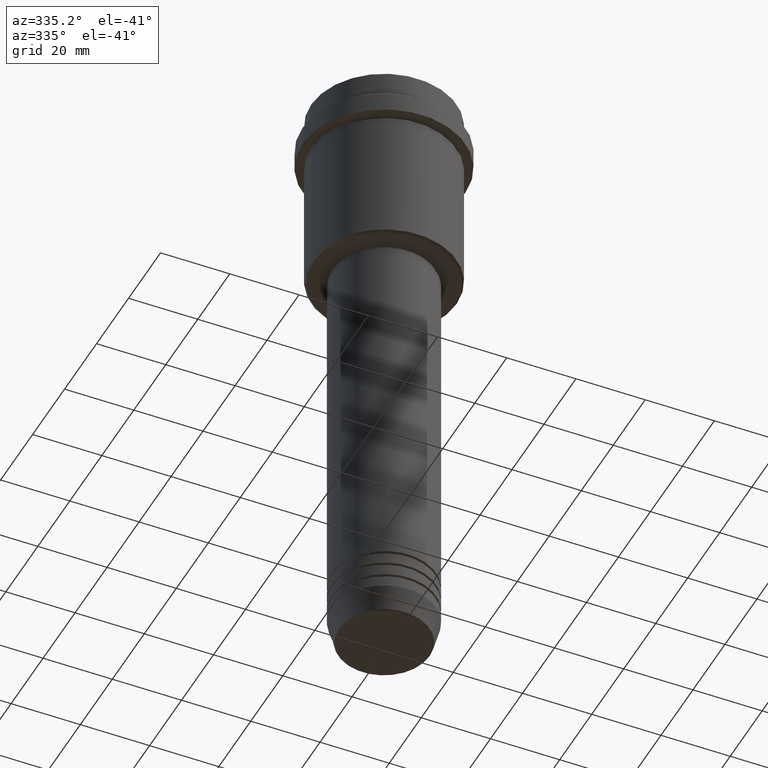
[diagram: clean part render]
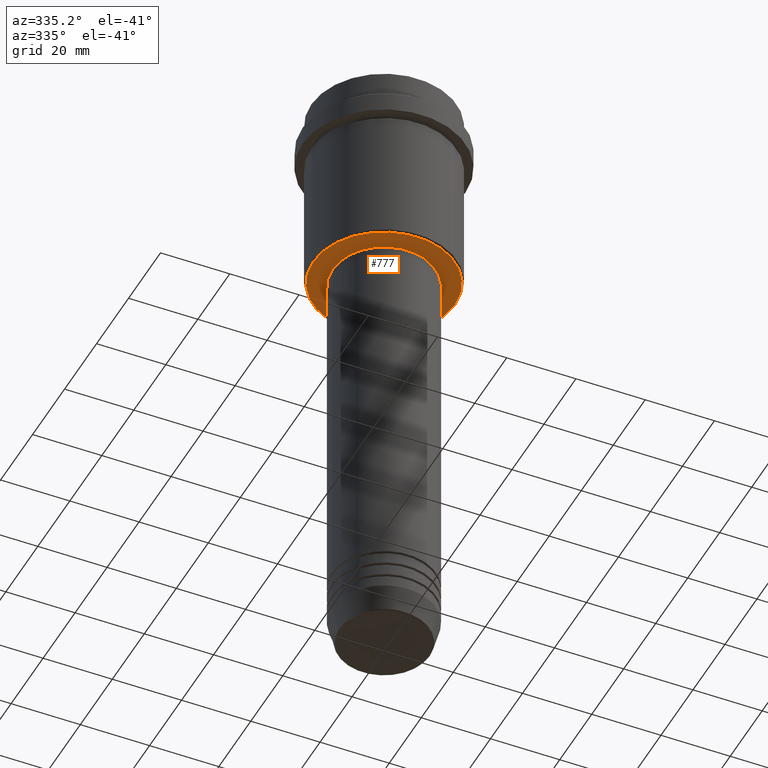
[diagram: same view with one face highlighted and labeled with its STEP entity id]
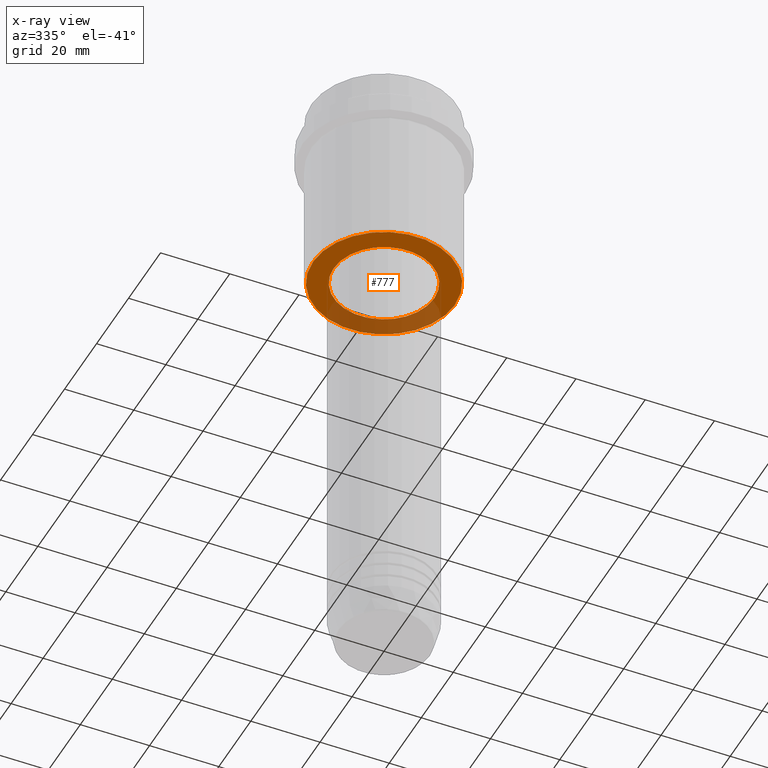
[diagram: x-ray of the same camera — body ghosted, the highlighted face saturated]
A machine part, auxiliary view. The second image highlights one B-rep face of the part: STEP entity #777.
The next image is the same camera in x-ray: the body ghosted, the highlighted face saturated — about 30% of this face is hidden behind the body in this view.
In plain terms, the highlighted planar face has unit normal (0, 0, -1).
Its self-contained STEP definition (entity closure, byte-faithful):
#12 = DIRECTION ( 'NONE',  ( 0.000000000000000000, 0.000000000000000000, -1.000000000000000000 ) ) ;
#60 = AXIS2_PLACEMENT_3D ( 'NONE', #85, #1067, #298 ) ;
#65 = PLANE ( 'NONE',  #1171 ) ;
#85 = CARTESIAN_POINT ( 'NONE',  ( 0.000000000000000000, 0.000000000000000000, -54.99999999999999289 ) ) ;
#103 = AXIS2_PLACEMENT_3D ( 'NONE', #710, #825, #603 ) ;
#121 = EDGE_CURVE ( 'NONE', #786, #694, #300, .T. ) ;
#136 = CARTESIAN_POINT ( 'NONE',  ( 20.50000000000000355, 0.000000000000000000, -54.99999999999999289 ) ) ;
#143 = CARTESIAN_POINT ( 'NONE',  ( 0.000000000000000000, 0.000000000000000000, -54.99999999999999289 ) ) ;
#153 = DIRECTION ( 'NONE',  ( -1.000000000000000000, 0.000000000000000000, 0.000000000000000000 ) ) ;
#178 = EDGE_LOOP ( 'NONE', ( #1097, #1356 ) ) ;
#197 = CARTESIAN_POINT ( 'NONE',  ( 14.49999999999999467, 0.000000000000000000, -54.99999999999999289 ) ) ;
#206 = FACE_BOUND ( 'NONE', #178, .T. ) ;
#291 = DIRECTION ( 'NONE',  ( -1.000000000000000000, 0.000000000000000000, -0.000000000000000000 ) ) ;
#298 = DIRECTION ( 'NONE',  ( 1.000000000000000000, 0.000000000000000000, 0.000000000000000000 ) ) ;
#300 = CIRCLE ( 'NONE', #656, 20.50000000000000355 ) ;
#330 = VERTEX_POINT ( 'NONE', #197 ) ;
#363 = AXIS2_PLACEMENT_3D ( 'NONE', #665, #12, #1116 ) ;
#393 = FACE_OUTER_BOUND ( 'NONE', #556, .T. ) ;
#556 = EDGE_LOOP ( 'NONE', ( #1111, #1214 ) ) ;
#560 = EDGE_CURVE ( 'NONE', #694, #786, #1144, .T. ) ;
#603 = DIRECTION ( 'NONE',  ( 1.000000000000000000, 0.000000000000000000, 0.000000000000000000 ) ) ;
#624 = CARTESIAN_POINT ( 'NONE',  ( -20.50000000000000355, 2.541142108230758269E-15, -54.99999999999999289 ) ) ;
#631 = EDGE_CURVE ( 'NONE', #330, #954, #915, .T. ) ;
#656 = AXIS2_PLACEMENT_3D ( 'NONE', #143, #812, #153 ) ;
#665 = CARTESIAN_POINT ( 'NONE',  ( 0.000000000000000000, 0.000000000000000000, -54.99999999999999289 ) ) ;
#694 = VERTEX_POINT ( 'NONE', #136 ) ;
#710 = CARTESIAN_POINT ( 'NONE',  ( 0.000000000000000000, 0.000000000000000000, -54.99999999999999289 ) ) ;
#742 = CARTESIAN_POINT ( 'NONE',  ( 0.000000000000000000, 21.00000000000000000, -54.99999999999999289 ) ) ;
#777 = ADVANCED_FACE ( 'NONE', ( #393, #206 ), #65, .T. ) ;
#786 = VERTEX_POINT ( 'NONE', #624 ) ;
#812 = DIRECTION ( 'NONE',  ( 0.000000000000000000, 0.000000000000000000, -1.000000000000000000 ) ) ;
#825 = DIRECTION ( 'NONE',  ( -0.000000000000000000, -0.000000000000000000, 1.000000000000000000 ) ) ;
#854 = EDGE_CURVE ( 'NONE', #954, #330, #964, .T. ) ;
#915 = CIRCLE ( 'NONE', #103, 14.49999999999999467 ) ;
#954 = VERTEX_POINT ( 'NONE', #980 ) ;
#964 = CIRCLE ( 'NONE', #60, 14.49999999999999467 ) ;
#980 = CARTESIAN_POINT ( 'NONE',  ( -14.49999999999999467, 1.775737858763661620E-15, -54.99999999999999289 ) ) ;
#1067 = DIRECTION ( 'NONE',  ( -0.000000000000000000, -0.000000000000000000, 1.000000000000000000 ) ) ;
#1097 = ORIENTED_EDGE ( 'NONE', *, *, #631, .T. ) ;
#1111 = ORIENTED_EDGE ( 'NONE', *, *, #560, .T. ) ;
#1116 = DIRECTION ( 'NONE',  ( -1.000000000000000000, 0.000000000000000000, 0.000000000000000000 ) ) ;
#1144 = CIRCLE ( 'NONE', #363, 20.50000000000000355 ) ;
#1171 = AXIS2_PLACEMENT_3D ( 'NONE', #742, #1185, #291 ) ;
#1185 = DIRECTION ( 'NONE',  ( 0.000000000000000000, 0.000000000000000000, -1.000000000000000000 ) ) ;
#1214 = ORIENTED_EDGE ( 'NONE', *, *, #121, .T. ) ;
#1356 = ORIENTED_EDGE ( 'NONE', *, *, #854, .T. ) ;